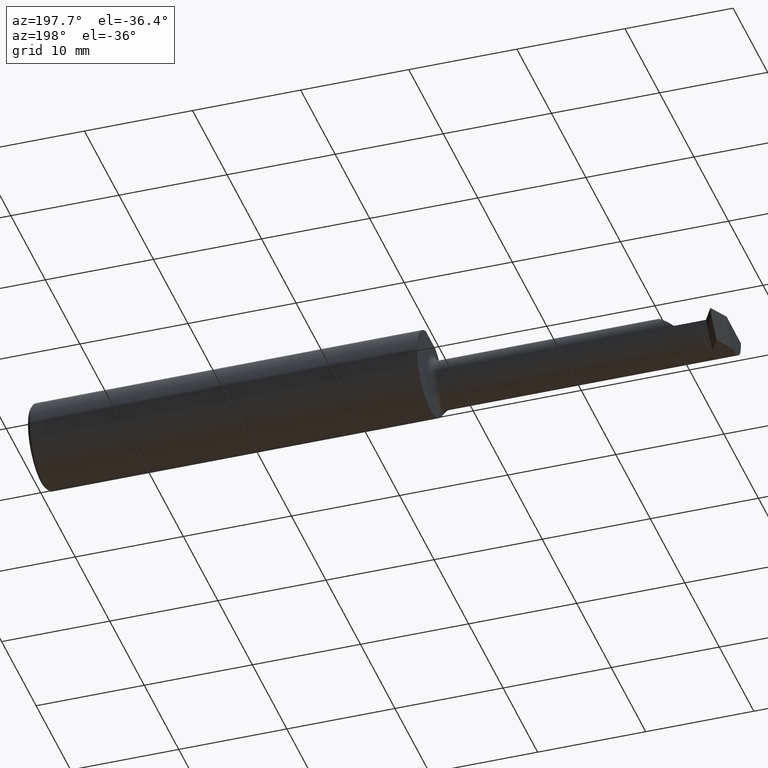
[diagram: clean part render]
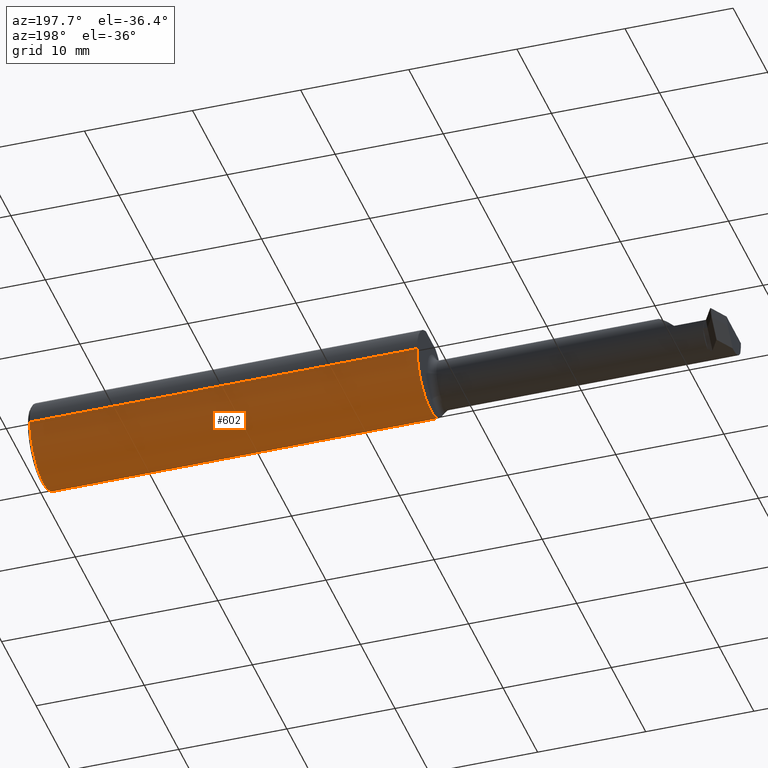
[diagram: same view with one face highlighted and labeled with its STEP entity id]
A machine part, auxiliary view. The second image highlights one B-rep face of the part: STEP entity #602.
In plain terms, the highlighted cylindrical surface (partial cylindrical patch) has radius 3.9649 mm, axis along (1, 0, -0).
Its self-contained STEP definition (entity closure, byte-faithful):
#2 = VERTEX_POINT ( 'NONE', #865 ) ;
#10 = VERTEX_POINT ( 'NONE', #260 ) ;
#29 = CARTESIAN_POINT ( 'NONE',  ( -0.009999999999999073866, 2.437047130303233649E-16, 0.000000000000000000 ) ) ;
#39 = DIRECTION ( 'NONE',  ( 0.000000000000000000, 1.000000000000000000, 0.000000000000000000 ) ) ;
#41 = CARTESIAN_POINT ( 'NONE',  ( -2.500000000000000000, -0.1561000000000000720, 8.875653457662611807E-19 ) ) ;
#84 = ORIENTED_EDGE ( 'NONE', *, *, #337, .F. ) ;
#93 = VECTOR ( 'NONE', #384, 39.37007874015748143 ) ;
#107 = CARTESIAN_POINT ( 'NONE',  ( -1.443446618368614098, -0.1472695137976343382, -0.05175809410911850345 ) ) ;
#117 = AXIS2_PLACEMENT_3D ( 'NONE', #192, #343, #795 ) ;
#150 = CARTESIAN_POINT ( 'NONE',  ( -2.500000000000000000, -0.1561000000000000720, 1.911673653469018376E-17 ) ) ;
#192 = CARTESIAN_POINT ( 'NONE',  ( -2.500000000000000000, -6.123233995736767268E-17, 0.000000000000000000 ) ) ;
#205 = CARTESIAN_POINT ( 'NONE',  ( -1.420462611252523821, -0.1222547939313148313, -0.09724325067964838254 ) ) ;
#208 = DIRECTION ( 'NONE',  ( 0.000000000000000000, -1.000000000000000000, 0.000000000000000000 ) ) ;
#227 = EDGE_CURVE ( 'NONE', #642, #314, #346, .T. ) ;
#229 = VERTEX_POINT ( 'NONE', #281 ) ;
#231 = CARTESIAN_POINT ( 'NONE',  ( -1.438188662569929832, -0.1461994008685688073, -0.05471926711676261545 ) ) ;
#233 = ORIENTED_EDGE ( 'NONE', *, *, #451, .T. ) ;
#234 = LINE ( 'NONE', #761, #330 ) ;
#241 = VECTOR ( 'NONE', #545, 39.37007874015748143 ) ;
#260 = CARTESIAN_POINT ( 'NONE',  ( -2.310000000000000053, -0.1561000000000000998, 0.000000000000000000 ) ) ;
#274 = CARTESIAN_POINT ( 'NONE',  ( -1.420000000000000151, -0.1142537450715593039, -0.1063639588254145785 ) ) ;
#281 = CARTESIAN_POINT ( 'NONE',  ( -0.009999999999999092948, 0.1561000000000002386, 0.000000000000000000 ) ) ;
#292 = ORIENTED_EDGE ( 'NONE', *, *, #586, .T. ) ;
#300 = CARTESIAN_POINT ( 'NONE',  ( -1.435093217728559356, -0.1449997488157368231, -0.05785581108117109767 ) ) ;
#311 = VERTEX_POINT ( 'NONE', #722 ) ;
#314 = VERTEX_POINT ( 'NONE', #316 ) ;
#316 = CARTESIAN_POINT ( 'NONE',  ( -1.420000000000000151, 0.1561000000000000720, 0.000000000000000000 ) ) ;
#320 = ORIENTED_EDGE ( 'NONE', *, *, #807, .F. ) ;
#321 = EDGE_CURVE ( 'NONE', #311, #642, #420, .T. ) ;
#330 = VECTOR ( 'NONE', #781, 39.37007874015748143 ) ;
#337 = EDGE_CURVE ( 'NONE', #10, #2, #414, .T. ) ;
#343 = DIRECTION ( 'NONE',  ( 1.000000000000000000, 1.224646799147352961E-16, -0.000000000000000000 ) ) ;
#346 = CIRCLE ( 'NONE', #373, 0.1561000000000000165 ) ;
#368 = CARTESIAN_POINT ( 'NONE',  ( -1.445000000000000062, -0.1472695137976346991, -0.05175809410911803160 ) ) ;
#370 = CARTESIAN_POINT ( 'NONE',  ( -1.423462366684949743, -0.1324922991513196591, -0.08274570526434636697 ) ) ;
#373 = AXIS2_PLACEMENT_3D ( 'NONE', #489, #819, #208 ) ;
#381 = CARTESIAN_POINT ( 'NONE',  ( -1.429076445919353233, -0.1408180008929574845, -0.06757000550034268638 ) ) ;
#384 = DIRECTION ( 'NONE',  ( 1.000000000000000000, 1.224646799147352961E-16, -0.000000000000000000 ) ) ;
#385 = EDGE_LOOP ( 'NONE', ( #84, #320, #292, #233, #720, #502, #573, #581 ) ) ;
#387 = DIRECTION ( 'NONE',  ( -1.000000000000000000, -1.224646799147319927E-16, 0.000000000000000000 ) ) ;
#392 = DIRECTION ( 'NONE',  ( 1.000000000000000000, 1.224646799147352961E-16, -0.000000000000000000 ) ) ;
#414 = LINE ( 'NONE', #150, #241 ) ;
#420 = B_SPLINE_CURVE_WITH_KNOTS ( 'NONE', 3,
 ( #368, #107, #653, #630, #231, #300, #710, #381, #645, #370, #634, #205, #480, #620 ),
 .UNSPECIFIED., .F., .F.,
 ( 4, 2, 2, 2, 2, 2, 4 ),
 ( 1.961733332188614115E-07, 0.0001163117065468609942, 0.0002324272397605031204, 0.0004646583061877737663, 0.0009291204390423037822, 0.001393582571896834557, 0.001858044704751365440 ),
 .UNSPECIFIED. ) ;
#424 = EDGE_CURVE ( 'NONE', #229, #2, #664, .T. ) ;
#448 = LINE ( 'NONE', #566, #93 ) ;
#451 = EDGE_CURVE ( 'NONE', #625, #311, #234, .T. ) ;
#480 = CARTESIAN_POINT ( 'NONE',  ( -1.419999999999964846, -0.1183915220908337562, -0.1019192528753025129 ) ) ;
#489 = CARTESIAN_POINT ( 'NONE',  ( -1.420000000000000151, 7.102951435054642734E-17, 0.000000000000000000 ) ) ;
#490 = EDGE_CURVE ( 'NONE', #314, #229, #448, .T. ) ;
#502 = ORIENTED_EDGE ( 'NONE', *, *, #227, .T. ) ;
#532 = CYLINDRICAL_SURFACE ( 'NONE', #117, 0.1561000000000000165 ) ;
#539 = DIRECTION ( 'NONE',  ( 1.000000000000000000, 1.224646799147352961E-16, -0.000000000000000000 ) ) ;
#540 = CARTESIAN_POINT ( 'NONE',  ( -2.500000000000000000, -6.123233995736767268E-17, 0.000000000000000000 ) ) ;
#545 = DIRECTION ( 'NONE',  ( 1.000000000000000000, 1.224646799147352961E-16, -0.000000000000000000 ) ) ;
#566 = CARTESIAN_POINT ( 'NONE',  ( -2.500000000000000000, 0.1560999999999999333, 0.000000000000000000 ) ) ;
#573 = ORIENTED_EDGE ( 'NONE', *, *, #490, .T. ) ;
#581 = ORIENTED_EDGE ( 'NONE', *, *, #424, .T. ) ;
#586 = EDGE_CURVE ( 'NONE', #694, #625, #746, .T. ) ;
#597 = FACE_OUTER_BOUND ( 'NONE', #385, .T. ) ;
#602 = ADVANCED_FACE ( 'NONE', ( #597 ), #532, .T. ) ;
#619 = VECTOR ( 'NONE', #539, 39.37007874015748143 ) ;
#620 = CARTESIAN_POINT ( 'NONE',  ( -1.420000000000000151, -0.1142537450715593039, -0.1063639588254145785 ) ) ;
#625 = VERTEX_POINT ( 'NONE', #873 ) ;
#630 = CARTESIAN_POINT ( 'NONE',  ( -1.439346208252526349, -0.1465601710296002280, -0.05373964015989967508 ) ) ;
#634 = CARTESIAN_POINT ( 'NONE',  ( -1.422196101700324844, -0.1292903952771552734, -0.08767256201919820802 ) ) ;
#642 = VERTEX_POINT ( 'NONE', #274 ) ;
#645 = CARTESIAN_POINT ( 'NONE',  ( -1.426939195357870949, -0.1382843393702949120, -0.07265330384103642347 ) ) ;
#650 = DIRECTION ( 'NONE',  ( -1.230512889522860364E-16, 1.000000000000000000, 0.000000000000000000 ) ) ;
#653 = CARTESIAN_POINT ( 'NONE',  ( -1.441958743194513115, -0.1470959753313502427, -0.05225520737744689809 ) ) ;
#664 = CIRCLE ( 'NONE', #737, 0.1561000000000000165 ) ;
#694 = VERTEX_POINT ( 'NONE', #41 ) ;
#710 = CARTESIAN_POINT ( 'NONE',  ( -1.433431488668993836, -0.1440181054450018761, -0.06027475888573611412 ) ) ;
#720 = ORIENTED_EDGE ( 'NONE', *, *, #321, .T. ) ;
#722 = CARTESIAN_POINT ( 'NONE',  ( -1.445000000000000062, -0.1472695137976346991, -0.05175809410911803160 ) ) ;
#737 = AXIS2_PLACEMENT_3D ( 'NONE', #29, #387, #650 ) ;
#738 = LINE ( 'NONE', #750, #619 ) ;
#746 = CIRCLE ( 'NONE', #848, 0.1561000000000000165 ) ;
#750 = CARTESIAN_POINT ( 'NONE',  ( -2.500000000000000000, -0.1561000000000000720, 8.875653457662609881E-19 ) ) ;
#761 = CARTESIAN_POINT ( 'NONE',  ( -1.933054491924310891, -0.1472695137976346158, -0.05175809410911793446 ) ) ;
#781 = DIRECTION ( 'NONE',  ( 1.000000000000000000, 1.301231752219315598E-17, 0.000000000000000000 ) ) ;
#795 = DIRECTION ( 'NONE',  ( 0.000000000000000000, 1.000000000000000000, 0.000000000000000000 ) ) ;
#807 = EDGE_CURVE ( 'NONE', #694, #10, #738, .T. ) ;
#819 = DIRECTION ( 'NONE',  ( 1.000000000000000000, 1.301231752219315598E-17, 0.000000000000000000 ) ) ;
#848 = AXIS2_PLACEMENT_3D ( 'NONE', #540, #392, #39 ) ;
#865 = CARTESIAN_POINT ( 'NONE',  ( -0.009999999999999054784, -0.1560999999999997667, 1.911673653469018376E-17 ) ) ;
#873 = CARTESIAN_POINT ( 'NONE',  ( -2.500000000000000000, -0.1472695137976348934, -0.05175809410911740016 ) ) ;